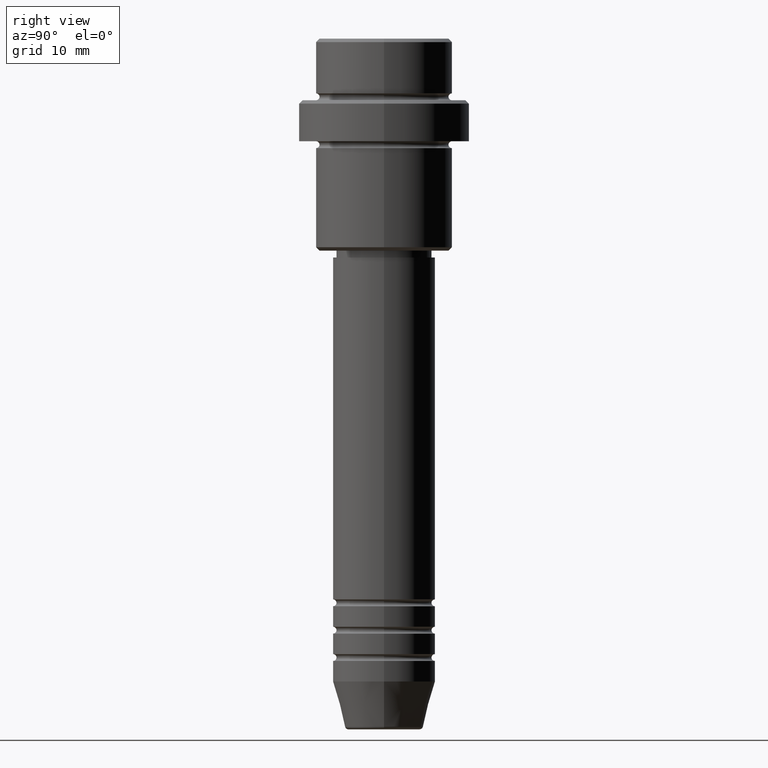
[diagram: clean part render]
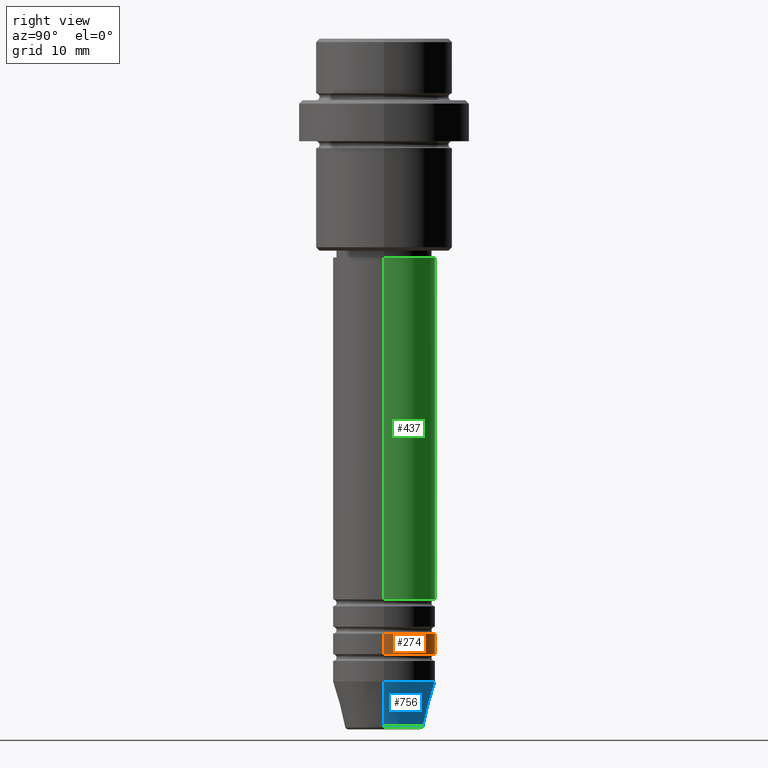
[diagram: same view with three faces highlighted in distinct colors, each labeled with its STEP entity id]
A machine part, right view with three faces highlighted in distinct colors.
Their STEP definitions:

[orange] entity #274 — the highlighted cylindrical surface (partial cylindrical patch) has radius 7.5 mm, axis along (-0, -0, 1).
#13 = AXIS2_PLACEMENT_3D ( 'NONE', #1308, #776, #235 ) ;
#44 = ORIENTED_EDGE ( 'NONE', *, *, #1166, .T. ) ;
#123 = DIRECTION ( 'NONE',  ( -0.000000000000000000, -0.000000000000000000, 1.000000000000000000 ) ) ;
#137 = LINE ( 'NONE', #568, #191 ) ;
#145 = CARTESIAN_POINT ( 'NONE',  ( -7.500000000000000000, 9.184850993605147944E-16, -86.99999999999988631 ) ) ;
#191 = VECTOR ( 'NONE', #362, 1000.000000000000000 ) ;
#217 = CARTESIAN_POINT ( 'NONE',  ( 7.500000000000000000, 0.000000000000000000, 0.000000000000000000 ) ) ;
#235 = DIRECTION ( 'NONE',  ( 1.000000000000000000, 0.000000000000000000, 0.000000000000000000 ) ) ;
#254 = AXIS2_PLACEMENT_3D ( 'NONE', #1082, #735, #1299 ) ;
#259 = FACE_OUTER_BOUND ( 'NONE', #365, .T. ) ;
#271 = DIRECTION ( 'NONE',  ( -0.000000000000000000, -0.000000000000000000, 1.000000000000000000 ) ) ;
#274 = ADVANCED_FACE ( 'NONE', ( #259 ), #907, .T. ) ;
#281 = AXIS2_PLACEMENT_3D ( 'NONE', #704, #271, #1348 ) ;
#288 = ORIENTED_EDGE ( 'NONE', *, *, #543, .F. ) ;
#291 = VERTEX_POINT ( 'NONE', #589 ) ;
#329 = LINE ( 'NONE', #217, #369 ) ;
#354 = EDGE_CURVE ( 'NONE', #1142, #693, #484, .T. ) ;
#362 = DIRECTION ( 'NONE',  ( -0.000000000000000000, -0.000000000000000000, 1.000000000000000000 ) ) ;
#365 = EDGE_LOOP ( 'NONE', ( #1340, #44, #288, #1354 ) ) ;
#369 = VECTOR ( 'NONE', #123, 1000.000000000000000 ) ;
#484 = CIRCLE ( 'NONE', #254, 7.500000000000000000 ) ;
#543 = EDGE_CURVE ( 'NONE', #291, #726, #692, .T. ) ;
#568 = CARTESIAN_POINT ( 'NONE',  ( -7.500000000000000000, 9.184850993605147944E-16, 0.000000000000000000 ) ) ;
#589 = CARTESIAN_POINT ( 'NONE',  ( 7.500000000000000000, 0.000000000000000000, -86.99999999999988631 ) ) ;
#596 = EDGE_CURVE ( 'NONE', #1142, #291, #329, .T. ) ;
#684 = CARTESIAN_POINT ( 'NONE',  ( 7.500000000000000000, 0.000000000000000000, -89.99999999999988631 ) ) ;
#692 = CIRCLE ( 'NONE', #13, 7.500000000000000000 ) ;
#693 = VERTEX_POINT ( 'NONE', #1238 ) ;
#704 = CARTESIAN_POINT ( 'NONE',  ( 0.000000000000000000, 0.000000000000000000, 0.000000000000000000 ) ) ;
#726 = VERTEX_POINT ( 'NONE', #145 ) ;
#735 = DIRECTION ( 'NONE',  ( -0.000000000000000000, -0.000000000000000000, 1.000000000000000000 ) ) ;
#776 = DIRECTION ( 'NONE',  ( -0.000000000000000000, -0.000000000000000000, 1.000000000000000000 ) ) ;
#907 = CYLINDRICAL_SURFACE ( 'NONE', #281, 7.500000000000000000 ) ;
#1082 = CARTESIAN_POINT ( 'NONE',  ( 0.000000000000000000, 0.000000000000000000, -89.99999999999988631 ) ) ;
#1142 = VERTEX_POINT ( 'NONE', #684 ) ;
#1166 = EDGE_CURVE ( 'NONE', #693, #726, #137, .T. ) ;
#1238 = CARTESIAN_POINT ( 'NONE',  ( -7.500000000000000000, 9.184850993605147944E-16, -89.99999999999988631 ) ) ;
#1299 = DIRECTION ( 'NONE',  ( 1.000000000000000000, 0.000000000000000000, 0.000000000000000000 ) ) ;
#1308 = CARTESIAN_POINT ( 'NONE',  ( 0.000000000000000000, 0.000000000000000000, -86.99999999999988631 ) ) ;
#1340 = ORIENTED_EDGE ( 'NONE', *, *, #354, .T. ) ;
#1348 = DIRECTION ( 'NONE',  ( 1.000000000000000000, 0.000000000000000000, 0.000000000000000000 ) ) ;
#1354 = ORIENTED_EDGE ( 'NONE', *, *, #596, .F. ) ;

[blue] entity #756 — the highlighted conical surface has half-angle 15 deg.
#30 = EDGE_CURVE ( 'NONE', #1215, #1026, #764, .T. ) ;
#56 = DIRECTION ( 'NONE',  ( 1.000000000000000000, 0.000000000000000000, 0.000000000000000000 ) ) ;
#58 = VECTOR ( 'NONE', #407, 1000.000000000000000 ) ;
#111 = CARTESIAN_POINT ( 'NONE',  ( 7.500000000000000000, 0.000000000000000000, -94.00000000000000000 ) ) ;
#126 = CIRCLE ( 'NONE', #763, 7.500000000000000000 ) ;
#146 = CONICAL_SURFACE ( 'NONE', #950, 7.500000000000000000, 0.2617993877991500740 ) ;
#179 = ORIENTED_EDGE ( 'NONE', *, *, #981, .F. ) ;
#318 = DIRECTION ( 'NONE',  ( -0.000000000000000000, -0.000000000000000000, 1.000000000000000000 ) ) ;
#390 = LINE ( 'NONE', #830, #58 ) ;
#394 = VECTOR ( 'NONE', #1113, 1000.000000000000000 ) ;
#407 = DIRECTION ( 'NONE',  ( -0.2588190451025213501, 3.169619151431772337E-17, 0.9659258262890680902 ) ) ;
#493 = FACE_OUTER_BOUND ( 'NONE', #1189, .T. ) ;
#524 = VERTEX_POINT ( 'NONE', #980 ) ;
#678 = LINE ( 'NONE', #111, #394 ) ;
#708 = DIRECTION ( 'NONE',  ( -0.000000000000000000, -0.000000000000000000, 1.000000000000000000 ) ) ;
#756 = ADVANCED_FACE ( 'NONE', ( #493 ), #146, .T. ) ;
#763 = AXIS2_PLACEMENT_3D ( 'NONE', #774, #989, #1099 ) ;
#764 = CIRCLE ( 'NONE', #1181, 5.723655072137191269 ) ;
#774 = CARTESIAN_POINT ( 'NONE',  ( 0.000000000000000000, 0.000000000000000000, -94.00000000000000000 ) ) ;
#819 = CARTESIAN_POINT ( 'NONE',  ( 7.500000000000000000, 0.000000000000000000, -94.00000000000000000 ) ) ;
#830 = CARTESIAN_POINT ( 'NONE',  ( -7.500000000000000000, 9.184850993605147944E-16, -94.00000000000000000 ) ) ;
#838 = DIRECTION ( 'NONE',  ( 1.000000000000000000, 0.000000000000000000, 0.000000000000000000 ) ) ;
#840 = ORIENTED_EDGE ( 'NONE', *, *, #30, .T. ) ;
#898 = EDGE_CURVE ( 'NONE', #1026, #524, #390, .T. ) ;
#905 = CARTESIAN_POINT ( 'NONE',  ( 5.723655072137191269, 0.000000000000000000, -100.6294095225512706 ) ) ;
#934 = CARTESIAN_POINT ( 'NONE',  ( 0.000000000000000000, 0.000000000000000000, -94.00000000000000000 ) ) ;
#950 = AXIS2_PLACEMENT_3D ( 'NONE', #934, #708, #56 ) ;
#980 = CARTESIAN_POINT ( 'NONE',  ( -7.500000000000000000, 9.184850993605147944E-16, -94.00000000000000000 ) ) ;
#981 = EDGE_CURVE ( 'NONE', #1215, #1281, #678, .T. ) ;
#989 = DIRECTION ( 'NONE',  ( -0.000000000000000000, -0.000000000000000000, 1.000000000000000000 ) ) ;
#1026 = VERTEX_POINT ( 'NONE', #1087 ) ;
#1061 = ORIENTED_EDGE ( 'NONE', *, *, #898, .T. ) ;
#1087 = CARTESIAN_POINT ( 'NONE',  ( -5.723655072137190380, 8.097153428560735915E-16, -100.6294095225512706 ) ) ;
#1099 = DIRECTION ( 'NONE',  ( 1.000000000000000000, 0.000000000000000000, 0.000000000000000000 ) ) ;
#1113 = DIRECTION ( 'NONE',  ( 0.2588190451025213501, 0.000000000000000000, 0.9659258262890680902 ) ) ;
#1157 = ORIENTED_EDGE ( 'NONE', *, *, #1397, .F. ) ;
#1181 = AXIS2_PLACEMENT_3D ( 'NONE', #1388, #318, #838 ) ;
#1189 = EDGE_LOOP ( 'NONE', ( #840, #1061, #1157, #179 ) ) ;
#1215 = VERTEX_POINT ( 'NONE', #905 ) ;
#1281 = VERTEX_POINT ( 'NONE', #819 ) ;
#1388 = CARTESIAN_POINT ( 'NONE',  ( 0.000000000000000000, 0.000000000000000000, -100.6294095225512706 ) ) ;
#1397 = EDGE_CURVE ( 'NONE', #1281, #524, #126, .T. ) ;

[green] entity #437 — the highlighted cylindrical surface (partial cylindrical patch) has radius 7.5 mm, axis along (-0, -0, 1).
#7 = EDGE_CURVE ( 'NONE', #517, #660, #491, .T. ) ;
#78 = LINE ( 'NONE', #507, #486 ) ;
#79 = CYLINDRICAL_SURFACE ( 'NONE', #968, 7.500000000000000000 ) ;
#94 = DIRECTION ( 'NONE',  ( -0.000000000000000000, -0.000000000000000000, 1.000000000000000000 ) ) ;
#178 = CARTESIAN_POINT ( 'NONE',  ( -7.500000000000000000, 9.184850993605147944E-16, 0.000000000000000000 ) ) ;
#181 = DIRECTION ( 'NONE',  ( -0.000000000000000000, -0.000000000000000000, 1.000000000000000000 ) ) ;
#182 = EDGE_CURVE ( 'NONE', #1203, #517, #1020, .T. ) ;
#218 = CARTESIAN_POINT ( 'NONE',  ( 0.000000000000000000, 0.000000000000000000, -81.99999999999987210 ) ) ;
#261 = VERTEX_POINT ( 'NONE', #913 ) ;
#310 = FACE_OUTER_BOUND ( 'NONE', #571, .T. ) ;
#437 = ADVANCED_FACE ( 'NONE', ( #310 ), #79, .T. ) ;
#448 = CARTESIAN_POINT ( 'NONE',  ( -7.500000000000000000, 9.184850993605147944E-16, -31.99999999999997868 ) ) ;
#486 = VECTOR ( 'NONE', #951, 1000.000000000000000 ) ;
#491 = LINE ( 'NONE', #178, #1393 ) ;
#507 = CARTESIAN_POINT ( 'NONE',  ( 7.500000000000000000, 0.000000000000000000, 0.000000000000000000 ) ) ;
#517 = VERTEX_POINT ( 'NONE', #671 ) ;
#571 = EDGE_LOOP ( 'NONE', ( #1095, #1364, #1345, #783 ) ) ;
#620 = DIRECTION ( 'NONE',  ( 1.000000000000000000, 0.000000000000000000, 0.000000000000000000 ) ) ;
#660 = VERTEX_POINT ( 'NONE', #448 ) ;
#671 = CARTESIAN_POINT ( 'NONE',  ( -7.500000000000000000, 9.184850993605147944E-16, -81.99999999999987210 ) ) ;
#728 = CARTESIAN_POINT ( 'NONE',  ( 0.000000000000000000, 0.000000000000000000, -31.99999999999997868 ) ) ;
#743 = AXIS2_PLACEMENT_3D ( 'NONE', #728, #181, #1058 ) ;
#783 = ORIENTED_EDGE ( 'NONE', *, *, #915, .F. ) ;
#803 = CIRCLE ( 'NONE', #743, 7.500000000000000000 ) ;
#835 = CARTESIAN_POINT ( 'NONE',  ( 0.000000000000000000, 0.000000000000000000, 0.000000000000000000 ) ) ;
#908 = EDGE_CURVE ( 'NONE', #261, #660, #803, .T. ) ;
#913 = CARTESIAN_POINT ( 'NONE',  ( 7.500000000000000000, 0.000000000000000000, -31.99999999999997868 ) ) ;
#915 = EDGE_CURVE ( 'NONE', #1203, #261, #78, .T. ) ;
#951 = DIRECTION ( 'NONE',  ( -0.000000000000000000, -0.000000000000000000, 1.000000000000000000 ) ) ;
#968 = AXIS2_PLACEMENT_3D ( 'NONE', #835, #94, #620 ) ;
#974 = AXIS2_PLACEMENT_3D ( 'NONE', #218, #1214, #1102 ) ;
#1020 = CIRCLE ( 'NONE', #974, 7.500000000000000000 ) ;
#1055 = DIRECTION ( 'NONE',  ( -0.000000000000000000, -0.000000000000000000, 1.000000000000000000 ) ) ;
#1058 = DIRECTION ( 'NONE',  ( 1.000000000000000000, 0.000000000000000000, 0.000000000000000000 ) ) ;
#1095 = ORIENTED_EDGE ( 'NONE', *, *, #182, .T. ) ;
#1102 = DIRECTION ( 'NONE',  ( 1.000000000000000000, 0.000000000000000000, 0.000000000000000000 ) ) ;
#1149 = CARTESIAN_POINT ( 'NONE',  ( 7.500000000000000000, 0.000000000000000000, -81.99999999999987210 ) ) ;
#1203 = VERTEX_POINT ( 'NONE', #1149 ) ;
#1214 = DIRECTION ( 'NONE',  ( -0.000000000000000000, -0.000000000000000000, 1.000000000000000000 ) ) ;
#1345 = ORIENTED_EDGE ( 'NONE', *, *, #908, .F. ) ;
#1364 = ORIENTED_EDGE ( 'NONE', *, *, #7, .T. ) ;
#1393 = VECTOR ( 'NONE', #1055, 1000.000000000000000 ) ;